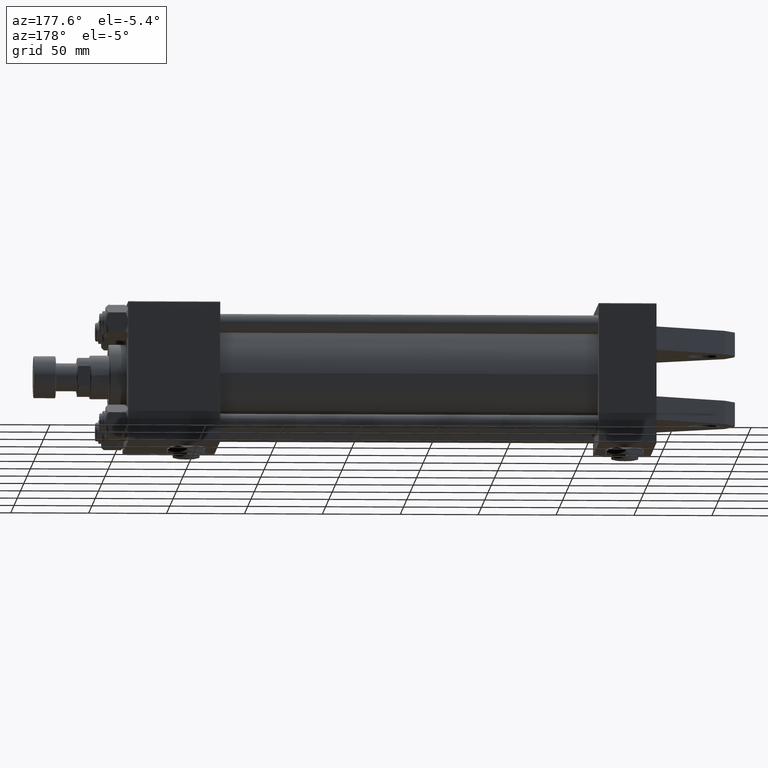
[diagram: clean part render]
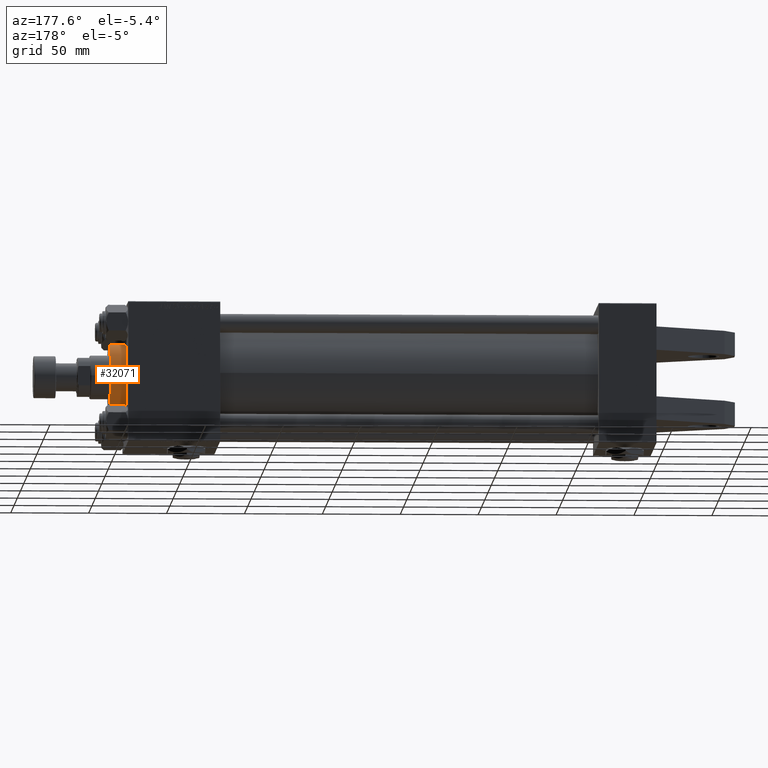
[diagram: same view with one face highlighted and labeled with its STEP entity id]
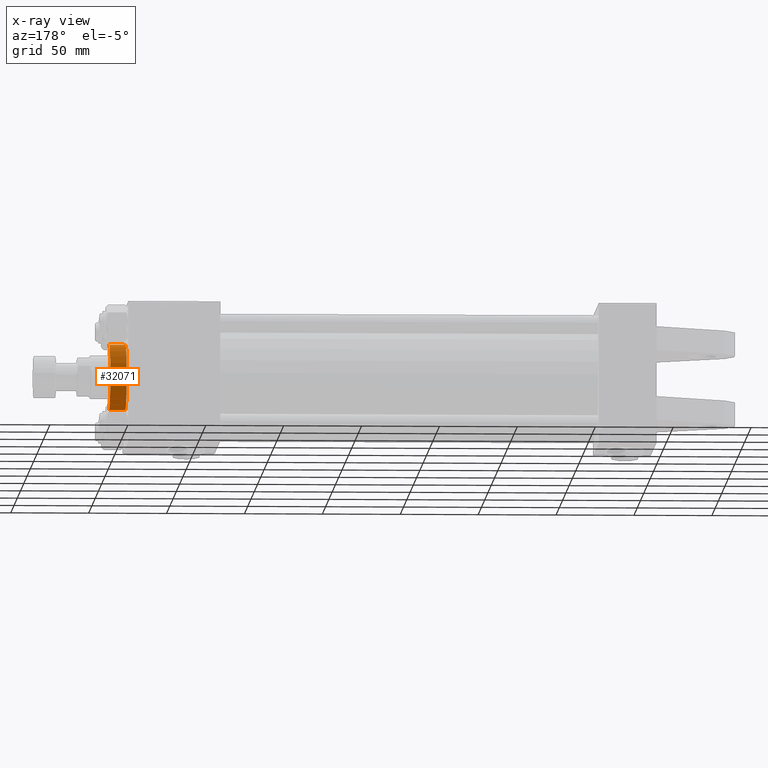
[diagram: x-ray of the same camera — body ghosted, the highlighted face saturated]
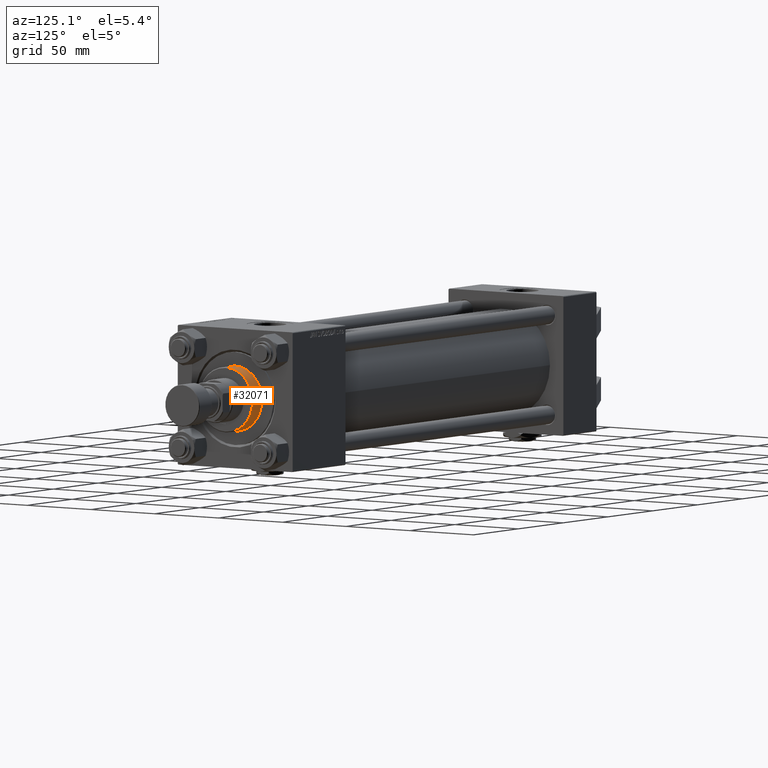
[diagram: same view with one face highlighted and labeled with its STEP entity id]
A machine part, auxiliary view. The second image highlights one B-rep face of the part: STEP entity #32071.
The next image is the same camera in x-ray: the body ghosted, the highlighted face saturated — about 0% of this face is hidden behind the body in this view.
A second angle (auxiliary view) of the same face is appended — the face is thin or edge-on in the first view.
In plain terms, the highlighted cylindrical surface (edge-blend (fillet) strip) has radius 21 mm, axis along (-1, 0, 0).
Its self-contained STEP definition (entity closure, byte-faithful):
#352 = DIRECTION ( 'NONE',  ( -0.000000000000000000, -0.000000000000000000, -1.000000000000000000 ) ) ;
#641 = VERTEX_POINT ( 'NONE', #1883 ) ;
#1883 = CARTESIAN_POINT ( 'NONE',  ( -21.00000000000000000, 0.000000000000000000, 28.69999999999999929 ) ) ;
#1946 = EDGE_CURVE ( 'NONE', #26568, #4137, #42159, .T. ) ;
#3243 = ORIENTED_EDGE ( 'NONE', *, *, #46593, .F. ) ;
#4137 = VERTEX_POINT ( 'NONE', #8715 ) ;
#6476 = CARTESIAN_POINT ( 'NONE',  ( 0.000000000000000000, 0.000000000000000000, 28.69999999999999929 ) ) ;
#6653 = DIRECTION ( 'NONE',  ( 0.000000000000000000, 0.000000000000000000, -1.000000000000000000 ) ) ;
#7767 = CARTESIAN_POINT ( 'NONE',  ( -21.00000000000000000, 0.000000000000000000, 39.19999999999999574 ) ) ;
#8283 = CARTESIAN_POINT ( 'NONE',  ( 21.00000000000000000, 2.571758278209441661E-15, 39.69999999999999574 ) ) ;
#8513 = CARTESIAN_POINT ( 'NONE',  ( 21.00000000000000000, 2.571758278209441661E-15, 28.69999999999999929 ) ) ;
#8715 = CARTESIAN_POINT ( 'NONE',  ( 21.00000000000000000, 2.571758278209441661E-15, 39.19999999999999574 ) ) ;
#9173 = CARTESIAN_POINT ( 'NONE',  ( -21.00000000000000000, 0.000000000000000000, 39.69999999999999574 ) ) ;
#9398 = ORIENTED_EDGE ( 'NONE', *, *, #31615, .T. ) ;
#9403 = DIRECTION ( 'NONE',  ( -0.000000000000000000, -0.000000000000000000, -1.000000000000000000 ) ) ;
#12852 = DIRECTION ( 'NONE',  ( -1.000000000000000000, 0.000000000000000000, 0.000000000000000000 ) ) ;
#12975 = VECTOR ( 'NONE', #21325, 1000.000000000000000 ) ;
#15341 = VECTOR ( 'NONE', #352, 1000.000000000000000 ) ;
#17501 = LINE ( 'NONE', #8283, #15341 ) ;
#18815 = CARTESIAN_POINT ( 'NONE',  ( 0.000000000000000000, 0.000000000000000000, 39.19999999999999574 ) ) ;
#19306 = AXIS2_PLACEMENT_3D ( 'NONE', #45862, #9403, #12852 ) ;
#20466 = ORIENTED_EDGE ( 'NONE', *, *, #39888, .T. ) ;
#21325 = DIRECTION ( 'NONE',  ( -0.000000000000000000, -0.000000000000000000, -1.000000000000000000 ) ) ;
#22736 = CIRCLE ( 'NONE', #32018, 21.00000000000000000 ) ;
#24948 = VERTEX_POINT ( 'NONE', #8513 ) ;
#26568 = VERTEX_POINT ( 'NONE', #7767 ) ;
#26819 = DIRECTION ( 'NONE',  ( 0.000000000000000000, 0.000000000000000000, 1.000000000000000000 ) ) ;
#31615 = EDGE_CURVE ( 'NONE', #24948, #641, #22736, .T. ) ;
#32018 = AXIS2_PLACEMENT_3D ( 'NONE', #6476, #26819, #51393 ) ;
#32071 = ADVANCED_FACE ( 'NONE', ( #45598 ), #49055, .T. ) ;
#32295 = EDGE_LOOP ( 'NONE', ( #41994, #20466, #9398, #3243 ) ) ;
#39685 = DIRECTION ( 'NONE',  ( 1.000000000000000000, 0.000000000000000000, 0.000000000000000000 ) ) ;
#39888 = EDGE_CURVE ( 'NONE', #4137, #24948, #17501, .T. ) ;
#41994 = ORIENTED_EDGE ( 'NONE', *, *, #1946, .T. ) ;
#42159 = CIRCLE ( 'NONE', #44715, 21.00000000000000000 ) ;
#44715 = AXIS2_PLACEMENT_3D ( 'NONE', #18815, #6653, #39685 ) ;
#45125 = LINE ( 'NONE', #9173, #12975 ) ;
#45598 = FACE_OUTER_BOUND ( 'NONE', #32295, .T. ) ;
#45862 = CARTESIAN_POINT ( 'NONE',  ( 0.000000000000000000, 0.000000000000000000, 39.69999999999999574 ) ) ;
#46593 = EDGE_CURVE ( 'NONE', #26568, #641, #45125, .T. ) ;
#49055 = CYLINDRICAL_SURFACE ( 'NONE', #19306, 21.00000000000000000 ) ;
#51393 = DIRECTION ( 'NONE',  ( 1.000000000000000000, 0.000000000000000000, 0.000000000000000000 ) ) ;